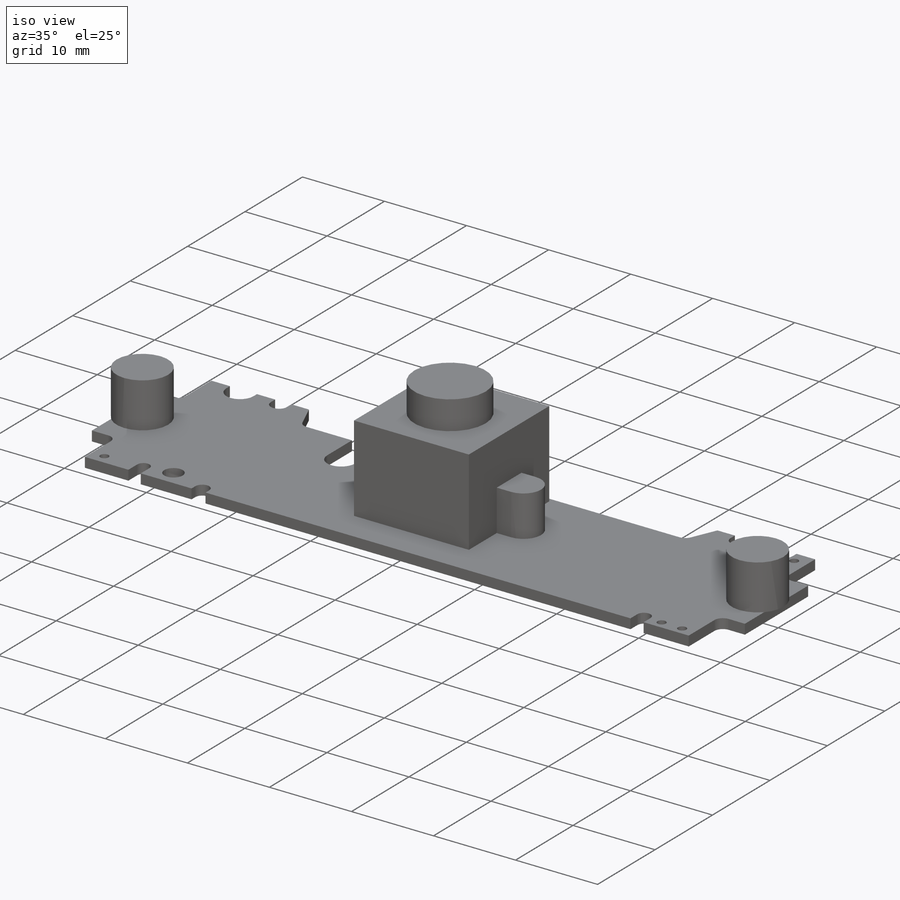
[diagram: iso view]
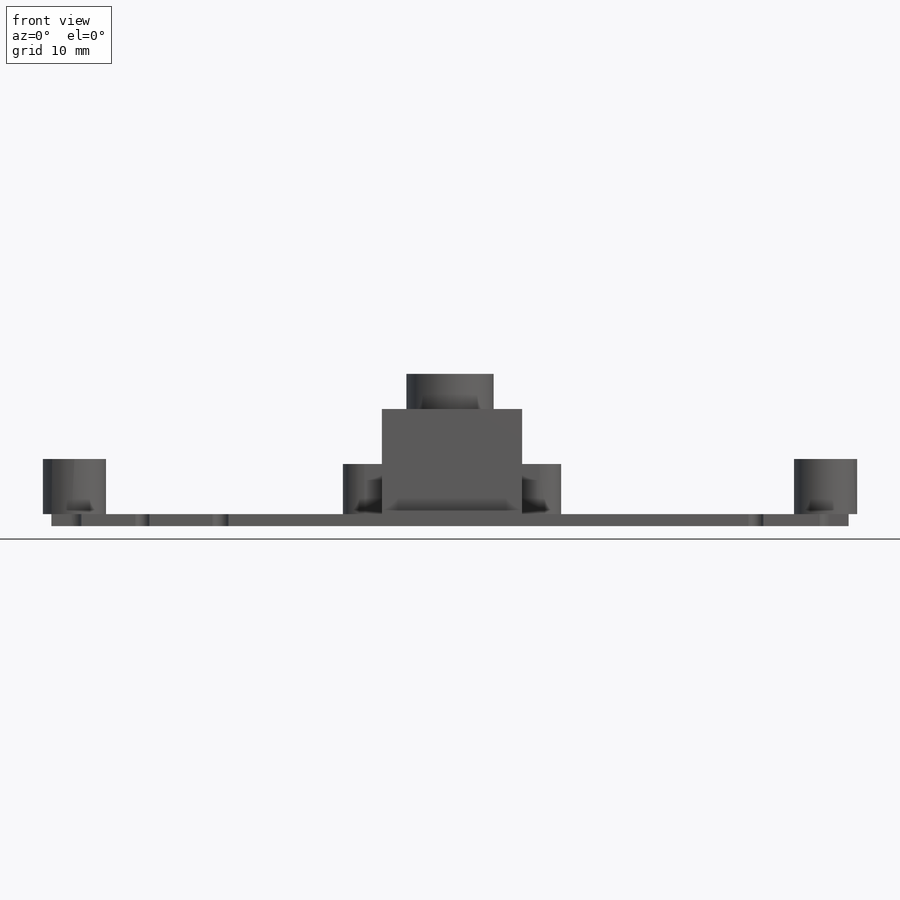
[diagram: front view]
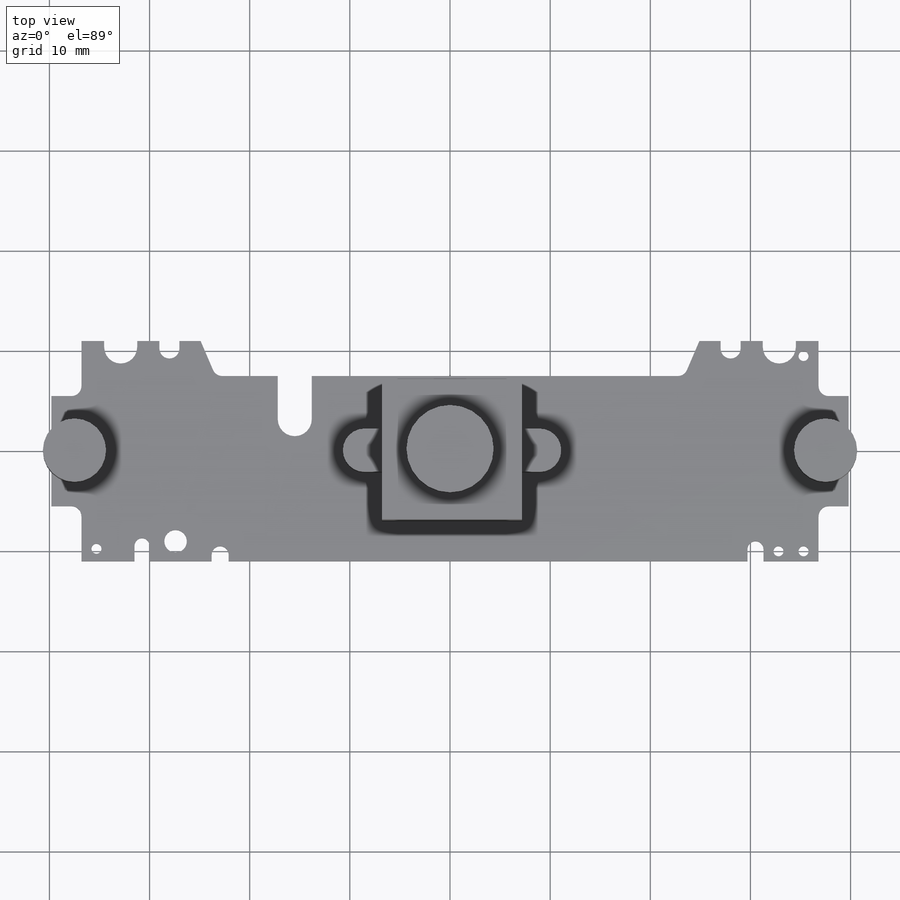
[diagram: top view]
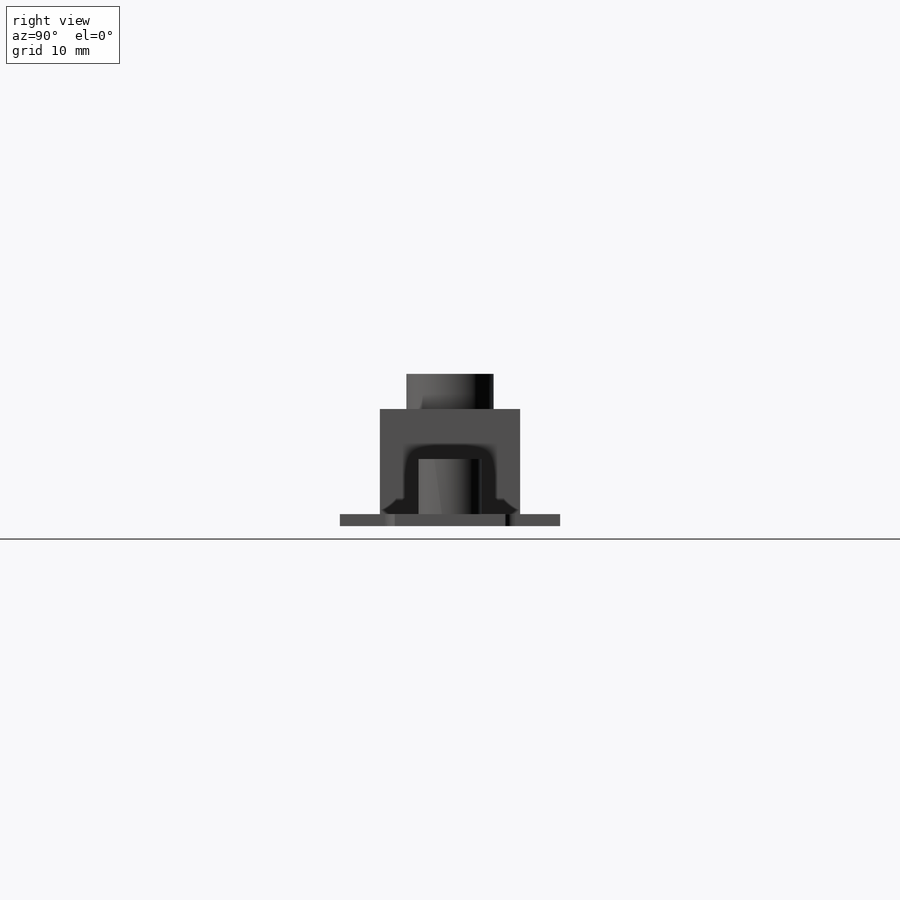
[diagram: right view]
SOLIDWORKS PART (.sldprt)
format: sldprt  version: not decoded by parser v0  size: 499,200 bytes
history: native  units: mm
features: sketch x5, extrude x5, material x1 (+13 scaffold rows collapsed)
feature tree (24):
  scaffold x13  (default folders/planes/origin — collapsed)
  material  "Material <not specified>"
  sketch  "Sketch1"  dims[c1.D21=1.7mm c1.D24=1.0mm c1.D23=1.65mm c1.D28=1.0mm c1.D29=1.0mm c1.D30=1.0mm c1.D12=1.0mm c1.D14=1.0mm c1.D13=1.0mm c1.D15=1.0mm c1.D16=1.0mm c1.D17=1.0mm c1.D11=1.0mm c1.D18=1.0mm c1.D20=0.8mm c1.D40=1.0mm c1.D42=2.25mm c1.D43=0.85mm c1.D41=0.75mm c1.D1=73.6mm c1.D2=22.0mm c1.D3=22.0mm c1.D4=11.0mm c1.D5=11.0mm c1.D6=18.5mm c1.D7=18.5mm c1.D8=5.0mm c1.D9=11.9mm c1.D10=11.9mm c2.D11=3.4mm c2.D12=5.5mm c2.D13=5.5mm c2.D14=3.0mm c2.D15=3.0mm c2.D16=3.0mm c2.D17=3.0mm c2.D18=46.8mm c2.D19=1.5mm c2.D20=1.5mm c2.D22=5.0mm c2.D8=36.8mm c3.D11=11.0mm c3.D23=3.3mm c3.D24=2.0mm c3.D25=2.25mm c3.D26=1.75mm c4.D25=3.3mm c4.D26=2.25mm c4.D27=1.75mm c4.D29=1.5mm c4.D30=1.5mm c4.D19=1.6mm c4.D20=2.0mm c4.D31=1.5mm c4.D32=4.0mm c4.D33=5.5mm c4.D34=1.0mm c4.D35=1.0mm c4.D36=1.5mm c4.D37=5.3mm c4.D38=9.4mm c4.D39=13.0mm c4.D41=1.5mm c4.D43=1.7mm c4.D44=1.25mm c4.D45=2.0mm c4.D46=2.3mm c4.D47=1.5mm c5.D46=19.6mm]
  extrude  "PCB"  Depth=1.2mm
  sketch  "Sketch2"  dims[D1=6.3mm D2=6.3mm D3=2.3mm D4=2.3mm]
  extrude  "speakers"  Depth=5.5mm
  sketch  "Sketch3"  dims[D1=14.0mm D2=14.0mm D3=47.0mm D4=14.5mm]
  extrude  "lens_mount"  Depth=10.5mm
  sketch  "Sketch4"  dims[c1.D2=4.3mm c1.D3=4.3mm c1.D6=4.3mm c1.D1=1.75mm c1.D4=7.0mm c1.D5=1.75mm c2.D6=~2.48339mm]
  extrude  "lens_mouting_holes"  Depth=5mm
  sketch  "Sketch5"  dims[D1=8.7mm]
  extrude  "lens"  Depth=3.5mm
decode coverage: 10 of 10 modeling features carry decoded parameters
note: ~ marks probable driven/reference dimensions
note: suppression state not decoded; provenance and decode notes live in map.json
